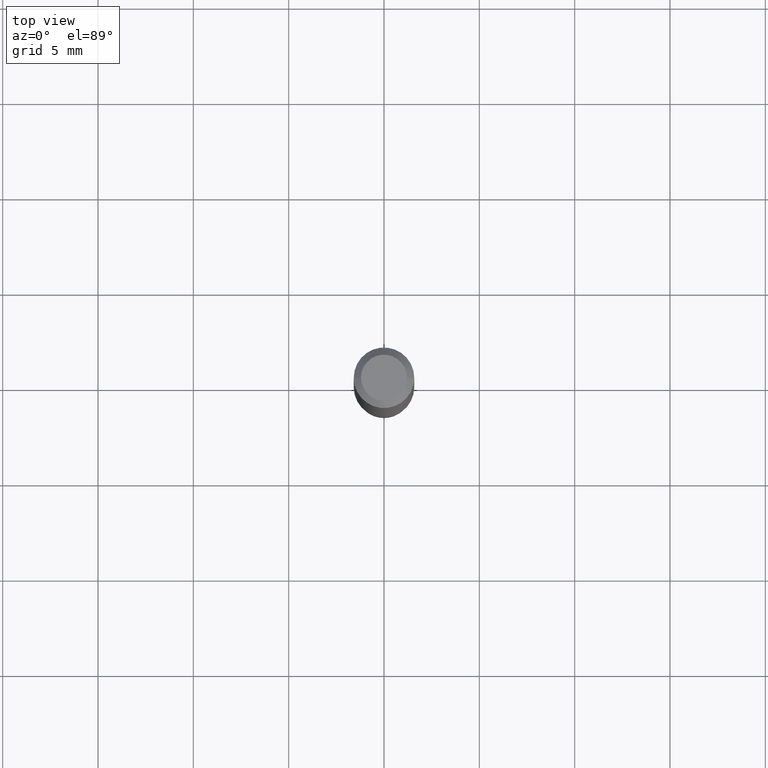
[diagram: clean part render]
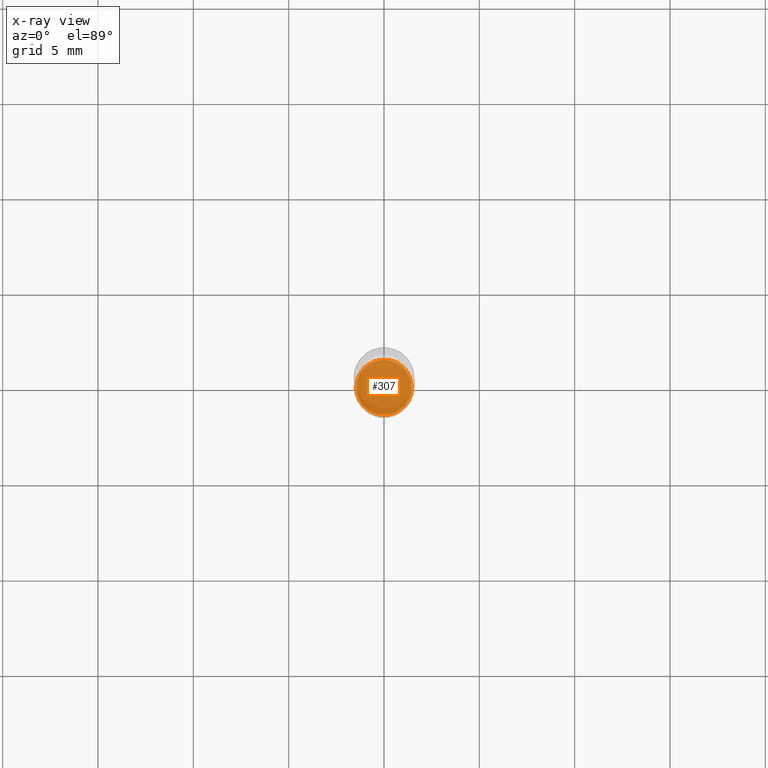
[diagram: x-ray — body ghosted, one internal face saturated and labeled with its STEP entity id]
A machine part, top view, then the same camera in x-ray: the body is ghosted and one INTERNAL B-rep face — a face not visible from any outside direction — is saturated and labeled: STEP entity #307.
In plain terms, the highlighted planar face has unit normal (-0, 0, 1).
Its self-contained STEP definition (entity closure, byte-faithful):
#27 = CIRCLE ( 'NONE', #382, 0.05700000000000008532 ) ;
#38 = DIRECTION ( 'NONE',  ( -2.438088387897960049E-29, 3.491481338843145188E-15, 1.000000000000000000 ) ) ;
#52 = VERTEX_POINT ( 'NONE', #135 ) ;
#105 = AXIS2_PLACEMENT_3D ( 'NONE', #402, #38, #168 ) ;
#112 = EDGE_LOOP ( 'NONE', ( #200, #389 ) ) ;
#135 = CARTESIAN_POINT ( 'NONE',  ( 0.05700000000000008532, -4.430689818991951185E-15, -1.155000000000000027 ) ) ;
#163 = CARTESIAN_POINT ( 'NONE',  ( 2.824516471143833307E-29, -4.032660946363833383E-15, -1.155000000000000027 ) ) ;
#168 = DIRECTION ( 'NONE',  ( 1.000000000000000000, -6.982962677686265922E-15, 4.876176775795935793E-29 ) ) ;
#169 = DIRECTION ( 'NONE',  ( -2.445468806185136597E-29, 3.491481338843145583E-15, 1.000000000000000000 ) ) ;
#200 = ORIENTED_EDGE ( 'NONE', *, *, #222, .F. ) ;
#209 = CARTESIAN_POINT ( 'NONE',  ( -0.05700000000000008532, -3.625002359806464716E-15, -1.155000000000000027 ) ) ;
#222 = EDGE_CURVE ( 'NONE', #52, #354, #426, .T. ) ;
#235 = AXIS2_PLACEMENT_3D ( 'NONE', #297, #435, #352 ) ;
#239 = PLANE ( 'NONE',  #105 ) ;
#279 = FACE_OUTER_BOUND ( 'NONE', #112, .T. ) ;
#297 = CARTESIAN_POINT ( 'NONE',  ( 2.824516471143833307E-29, -4.032660946363833383E-15, -1.155000000000000027 ) ) ;
#307 = ADVANCED_FACE ( 'NONE', ( #279 ), #239, .F. ) ;
#340 = EDGE_CURVE ( 'NONE', #354, #52, #27, .T. ) ;
#352 = DIRECTION ( 'NONE',  ( 1.000000000000000000, -6.982962677686271444E-15, 0.000000000000000000 ) ) ;
#354 = VERTEX_POINT ( 'NONE', #209 ) ;
#382 = AXIS2_PLACEMENT_3D ( 'NONE', #163, #169, #446 ) ;
#389 = ORIENTED_EDGE ( 'NONE', *, *, #340, .F. ) ;
#402 = CARTESIAN_POINT ( 'NONE',  ( 2.824516471143833307E-29, -4.032660946363833383E-15, -1.155000000000000027 ) ) ;
#426 = CIRCLE ( 'NONE', #235, 0.05700000000000008532 ) ;
#435 = DIRECTION ( 'NONE',  ( -2.445468806185136597E-29, 3.491481338843145583E-15, 1.000000000000000000 ) ) ;
#446 = DIRECTION ( 'NONE',  ( 1.000000000000000000, -6.982962677686271444E-15, 0.000000000000000000 ) ) ;